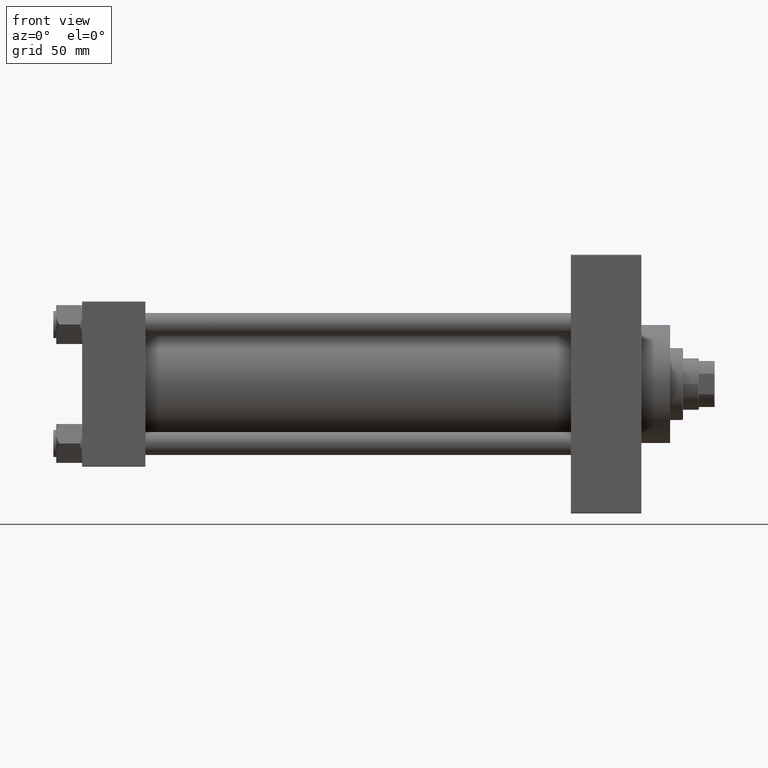
[diagram: clean part render]
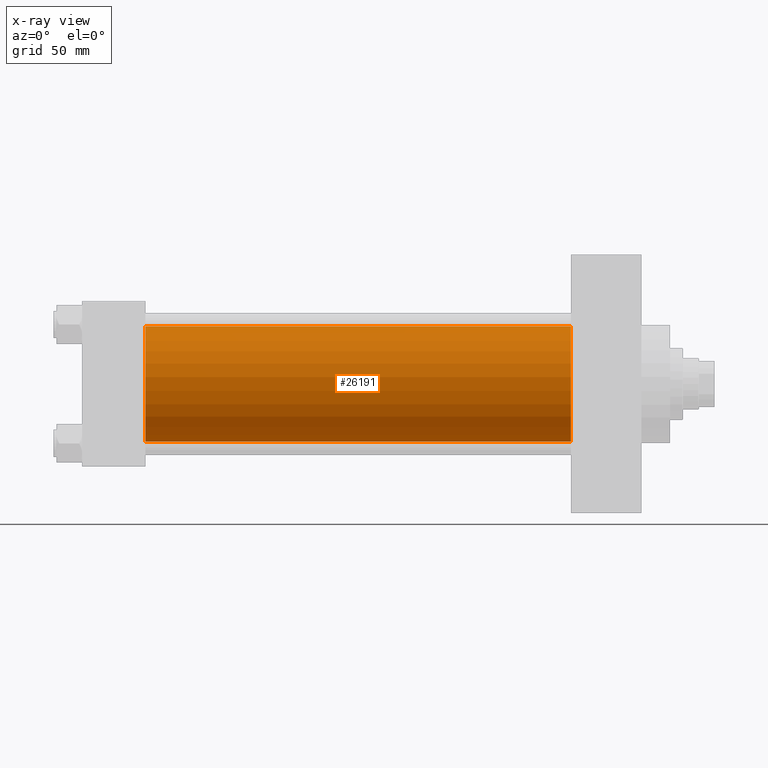
[diagram: x-ray — body ghosted, one internal face saturated and labeled with its STEP entity id]
A machine part, front view, then the same camera in x-ray: the body is ghosted and one INTERNAL B-rep face — a face not visible from any outside direction — is saturated and labeled: STEP entity #26191.
In plain terms, the highlighted cylindrical surface (partial cylindrical patch) has radius 40 mm, axis along (-1, -0, -0).
Its self-contained STEP definition (entity closure, byte-faithful):
#818 = DIRECTION ( 'NONE',  ( -1.000000000000000000, -0.000000000000000000, -0.000000000000000000 ) ) ;
#1669 = CARTESIAN_POINT ( 'NONE',  ( 339.9999999999999432, -2.602085213965210642E-15, 40.00000000000000000 ) ) ;
#2979 = CIRCLE ( 'NONE', #20713, 40.00000000000000000 ) ;
#3797 = CARTESIAN_POINT ( 'NONE',  ( 339.9999999999999432, -2.602085213965210642E-15, 40.00000000000000000 ) ) ;
#3949 = CARTESIAN_POINT ( 'NONE',  ( 339.9999999999999432, -2.602085213965210642E-15, 0.000000000000000000 ) ) ;
#4455 = ORIENTED_EDGE ( 'NONE', *, *, #46132, .F. ) ;
#4769 = CARTESIAN_POINT ( 'NONE',  ( 44.00000000000000000, 2.296501982624201990E-15, -40.00000000000000000 ) ) ;
#5659 = DIRECTION ( 'NONE',  ( 1.000000000000000000, 0.000000000000000000, 0.000000000000000000 ) ) ;
#8662 = CARTESIAN_POINT ( 'NONE',  ( 339.9999999999999432, 2.296501982624201990E-15, -40.00000000000000000 ) ) ;
#9517 = LINE ( 'NONE', #1669, #32633 ) ;
#9825 = CARTESIAN_POINT ( 'NONE',  ( 44.00000000000000000, -2.602085213965210642E-15, 40.00000000000000000 ) ) ;
#10972 = VERTEX_POINT ( 'NONE', #9825 ) ;
#12806 = DIRECTION ( 'NONE',  ( -1.000000000000000000, -0.000000000000000000, -0.000000000000000000 ) ) ;
#14633 = CARTESIAN_POINT ( 'NONE',  ( 339.9999999999999432, -2.602085213965210642E-15, 0.000000000000000000 ) ) ;
#16057 = FACE_OUTER_BOUND ( 'NONE', #30679, .T. ) ;
#16297 = DIRECTION ( 'NONE',  ( 0.000000000000000000, 0.000000000000000000, 1.000000000000000000 ) ) ;
#16624 = CARTESIAN_POINT ( 'NONE',  ( 339.9999999999999432, 2.296501982624201990E-15, -40.00000000000000000 ) ) ;
#17047 = ORIENTED_EDGE ( 'NONE', *, *, #40259, .T. ) ;
#18185 = VERTEX_POINT ( 'NONE', #4769 ) ;
#20713 = AXIS2_PLACEMENT_3D ( 'NONE', #32437, #5659, #29149 ) ;
#22483 = DIRECTION ( 'NONE',  ( 1.000000000000000000, 0.000000000000000000, 0.000000000000000000 ) ) ;
#22975 = DIRECTION ( 'NONE',  ( 0.000000000000000000, 0.000000000000000000, -1.000000000000000000 ) ) ;
#23874 = AXIS2_PLACEMENT_3D ( 'NONE', #3949, #26938, #16297 ) ;
#25678 = EDGE_CURVE ( 'NONE', #47931, #25713, #30298, .T. ) ;
#25713 = VERTEX_POINT ( 'NONE', #16624 ) ;
#26191 = ADVANCED_FACE ( 'NONE', ( #16057 ), #35532, .F. ) ;
#26261 = ORIENTED_EDGE ( 'NONE', *, *, #25678, .T. ) ;
#26938 = DIRECTION ( 'NONE',  ( -1.000000000000000000, -0.000000000000000000, -0.000000000000000000 ) ) ;
#28255 = EDGE_CURVE ( 'NONE', #10972, #18185, #2979, .T. ) ;
#29149 = DIRECTION ( 'NONE',  ( 0.000000000000000000, 0.000000000000000000, -1.000000000000000000 ) ) ;
#30298 = CIRCLE ( 'NONE', #39994, 40.00000000000000000 ) ;
#30679 = EDGE_LOOP ( 'NONE', ( #26261, #17047, #43448, #4455 ) ) ;
#32437 = CARTESIAN_POINT ( 'NONE',  ( 44.00000000000000000, -2.602085213965210642E-15, 0.000000000000000000 ) ) ;
#32633 = VECTOR ( 'NONE', #12806, 1000.000000000000000 ) ;
#35532 = CYLINDRICAL_SURFACE ( 'NONE', #23874, 40.00000000000000000 ) ;
#39742 = LINE ( 'NONE', #8662, #43603 ) ;
#39994 = AXIS2_PLACEMENT_3D ( 'NONE', #14633, #22483, #22975 ) ;
#40259 = EDGE_CURVE ( 'NONE', #25713, #18185, #39742, .T. ) ;
#43448 = ORIENTED_EDGE ( 'NONE', *, *, #28255, .F. ) ;
#43603 = VECTOR ( 'NONE', #818, 1000.000000000000000 ) ;
#46132 = EDGE_CURVE ( 'NONE', #47931, #10972, #9517, .T. ) ;
#47931 = VERTEX_POINT ( 'NONE', #3797 ) ;